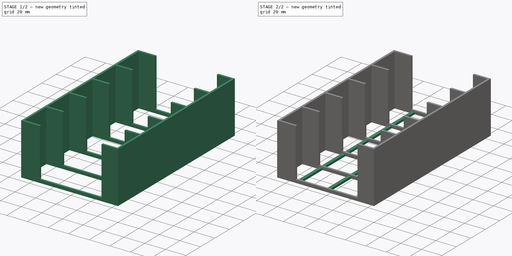
[diagram: build sequence overview — one tinted view per stage of 2, left to right]
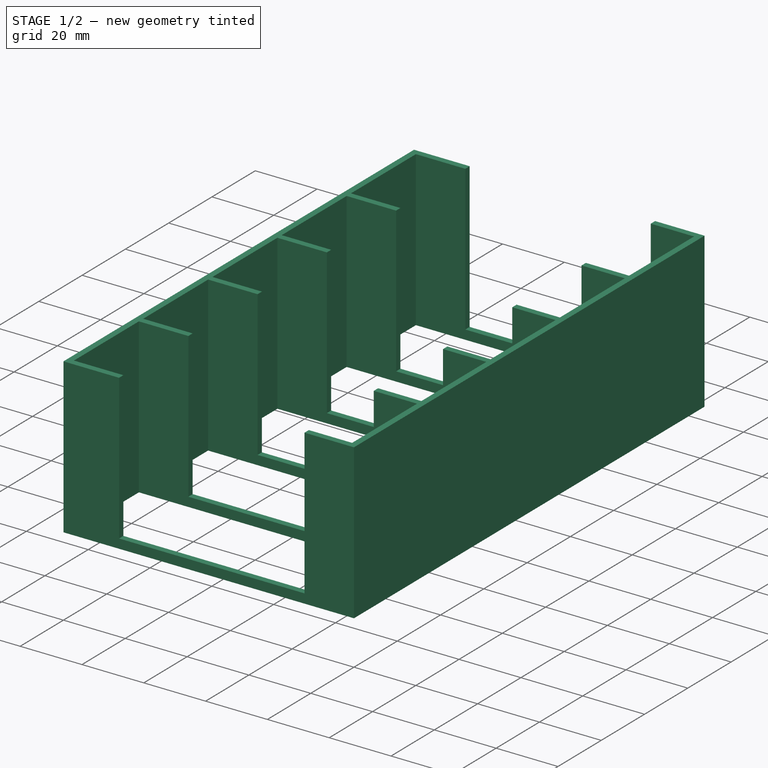
[diagram: stage 1 of 2 — iso view after this stage's code; geometry added in this stage tinted green]
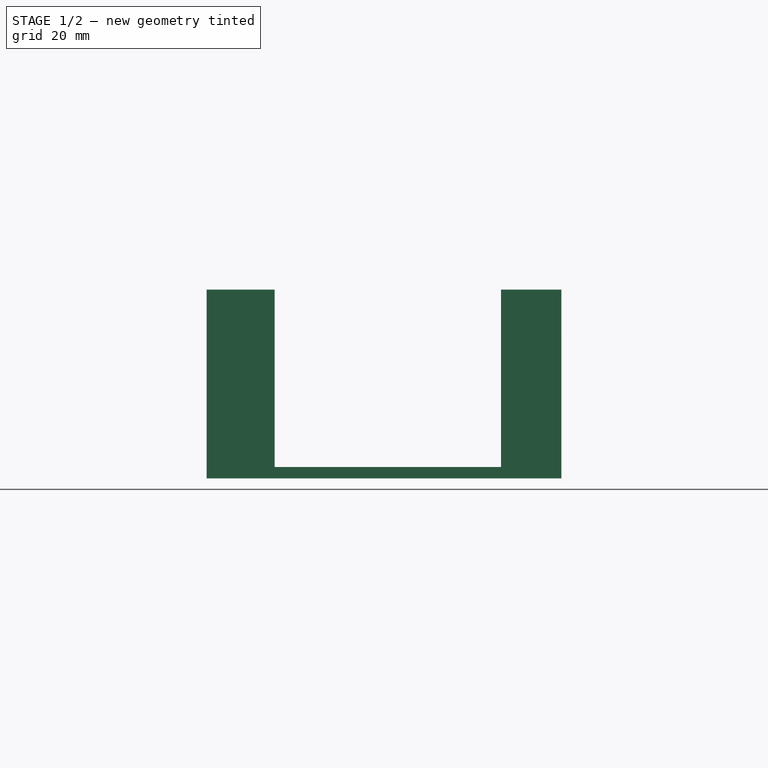
[diagram: stage 1 of 2 — front view after this stage's code; geometry added in this stage tinted green]
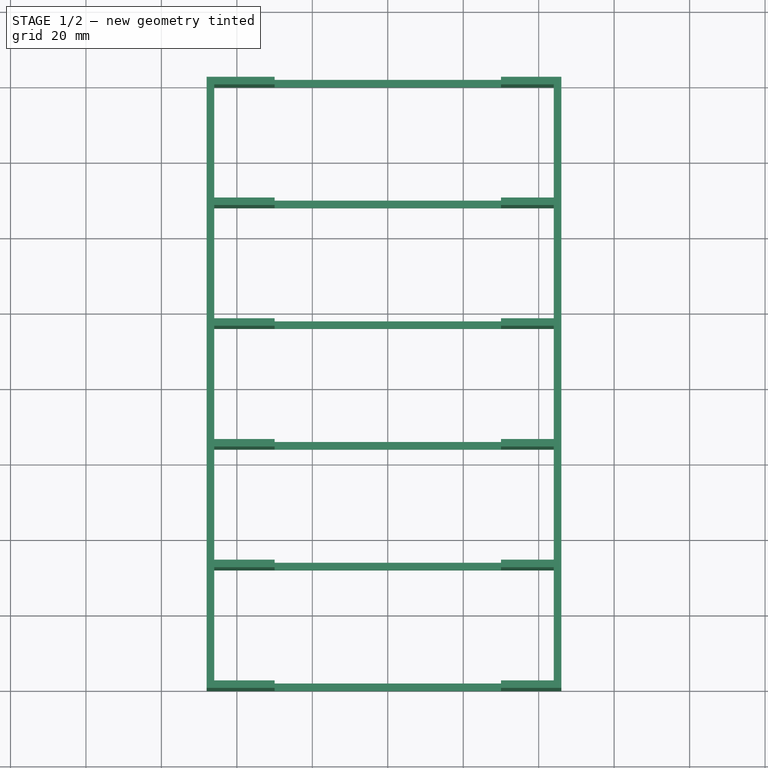
[diagram: stage 1 of 2 — top view after this stage's code; geometry added in this stage tinted green]
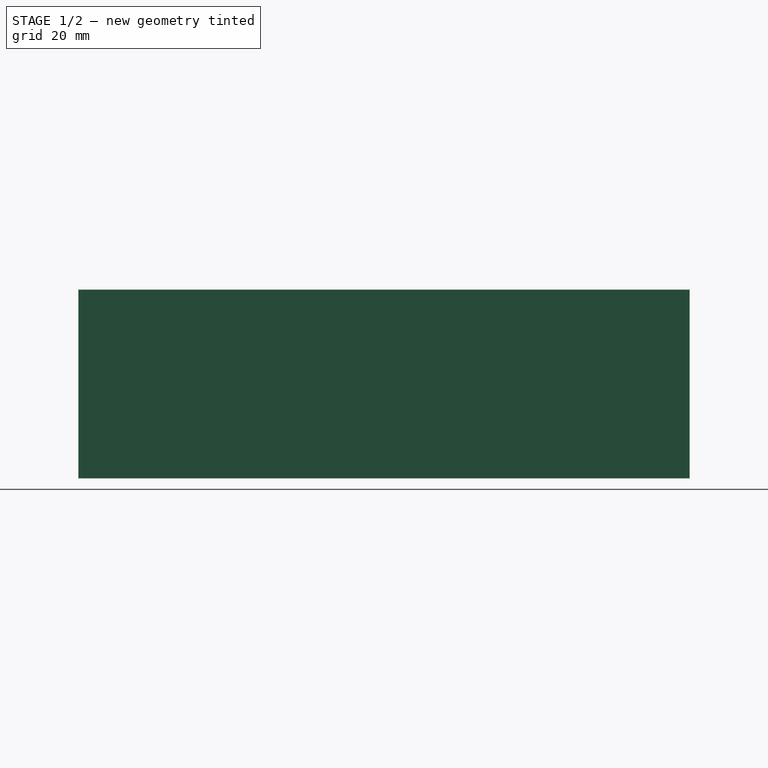
[diagram: stage 1 of 2 — right view after this stage's code; geometry added in this stage tinted green]
FCSTD DOCUMENT  (FreeCAD 0.21R33771 (Git))
Label: frame
License: All rights reserved
LicenseURL: http://en.wikipedia.org/wiki/All_rights_reserved
objects: Sketcher::SketchObject×3, PartDesign::Pad×2, PartDesign::Pocket×1, PartDesign::Body×1
note: 10 computed .brp shape members not serialized (recipe doc carries the construction recipe); baked Part::Feature solids carry a one-line shape summary decoded from their .brp

FEATURE [Sketcher::SketchObject] Sketch
  FullyConstrained = true
  MapMode = 5
  Support = -> [XY_Plane]
  sketch-geometry (24):
    g0: LineSegment StartX=-48 StartY=162 StartZ=0 EndX=46 EndY=162 EndZ=0
    g1: LineSegment StartX=46 StartY=162 StartZ=0 EndX=46 EndY=0 EndZ=0
    g2: LineSegment StartX=-48 StartY=162 StartZ=0 EndX=-48 EndY=0 EndZ=0
    g3: LineSegment StartX=-46 StartY=160 StartZ=0 EndX=44 EndY=160 EndZ=0
    g4: LineSegment StartX=44 StartY=160 StartZ=0 EndX=44 EndY=130 EndZ=0
    g5: LineSegment StartX=44 StartY=130 StartZ=0 EndX=-46 EndY=130 EndZ=0
    g6: LineSegment StartX=-46 StartY=130 StartZ=0 EndX=-46 EndY=160 EndZ=0
    g7: LineSegment StartX=-46 StartY=128 StartZ=0 EndX=44 EndY=128 EndZ=0
    g8: LineSegment StartX=44 StartY=128 StartZ=0 EndX=44 EndY=98 EndZ=0
    g9: LineSegment StartX=44 StartY=98 StartZ=0 EndX=-46 EndY=98 EndZ=0
    g10: LineSegment StartX=-46 StartY=98 StartZ=0 EndX=-46 EndY=128 EndZ=0
    g11: LineSegment StartX=-46 StartY=96 StartZ=0 EndX=44 EndY=96 EndZ=0
    g12: LineSegment StartX=44 StartY=96 StartZ=0 EndX=44 EndY=66 EndZ=0
    g13: LineSegment StartX=44 StartY=66 StartZ=0 EndX=-46 EndY=66 EndZ=0
    g14: LineSegment StartX=-46 StartY=66 StartZ=0 EndX=-46 EndY=96 EndZ=0
    g15: LineSegment StartX=-46 StartY=64 StartZ=0 EndX=44 EndY=64 EndZ=0
    g16: LineSegment StartX=44 StartY=64 StartZ=0 EndX=44 EndY=34 EndZ=0
    g17: LineSegment StartX=44 StartY=34 StartZ=0 EndX=-46 EndY=34 EndZ=0
    g18: LineSegment StartX=-46 StartY=34 StartZ=0 EndX=-46 EndY=64 EndZ=0
    g19: LineSegment StartX=-46 StartY=32 StartZ=0 EndX=44 EndY=32 EndZ=0
    g20: LineSegment StartX=44 StartY=32 StartZ=0 EndX=44 EndY=2 EndZ=0
    g21: LineSegment StartX=44 StartY=2 StartZ=0 EndX=-46 EndY=2 EndZ=0
    g22: LineSegment StartX=-46 StartY=2 StartZ=0 EndX=-46 EndY=32 EndZ=0
    g23: LineSegment StartX=-48 StartY=0 StartZ=0 EndX=46 EndY=0 EndZ=0
  constraints (72):
    c: Horizontal(g0)
    c: Vertical(g1)
    c: DistanceX(g23,g-1) = 48
    c: Vertical(g2)
    c: Coincident(g0,g1)
    c: Coincident(g3,g4)
    c: Coincident(g4,g5)
    c: Coincident(g5,g6)
    c: Coincident(g6,g3)
    c: Horizontal(g3)
    c: Horizontal(g5)
    c: Vertical(g4)
    c: Vertical(g6)
    c: Coincident(g7,g8)
    c: Coincident(g8,g9)
    c: Coincident(g9,g10)
    c: Coincident(g10,g7)
    c: Horizontal(g7)
    c: Horizontal(g9)
    c: Vertical(g8)
    c: Vertical(g10)
    c: Coincident(g11,g12)
    c: Coincident(g12,g13)
    c: Coincident(g13,g14)
    c: Coincident(g14,g11)
    c: Horizontal(g13)
    c: Vertical(g12)
    c: Vertical(g14)
    c: Coincident(g15,g16)
    c: Coincident(g16,g17)
    c: Coincident(g17,g18)
    c: Coincident(g18,g15)
    c: Horizontal(g15)
    c: Horizontal(g17)
    c: Vertical(g16)
    c: Vertical(g18)
    c: DistanceY(g15,g12) = 2
    c: Coincident(g19,g20)
    c: Coincident(g20,g21)
    c: Coincident(g21,g22)
    c: Coincident(g22,g19)
    c: Horizontal(g19)
    c: Horizontal(g21)
    c: Vertical(g20)
    c: Vertical(g22)
    c: DistanceY(g20,g20) = 30
    c: Horizontal(g23)
    c: Coincident(g2,g23)
    c: Coincident(g2,g0)
    c: Coincident(g1,g23)
    c: DistanceX(g23,g23) = 94
    c: DistanceX(g2,g21) = 2
    c: Vertical(g17,g19)
    c: Vertical(g13,g15)
    c: Vertical(g9,g11)
    c: Vertical(g5,g7)
    c: DistanceY(g2,g21) = 2
    c: DistanceY(g19,g17) = 2
    c: DistanceX(g21,g21) = 90
    c: Equal(g21,g17)
    c: Equal(g17,g13)
    c: Equal(g13,g9)
    c: Equal(g9,g5)
    c: Equal(g20,g16)
    c: Equal(g16,g12)
    c: Equal(g12,g8)
    c: Equal(g8,g4)
    c: Horizontal(g11)
    c: DistanceY(g11,g9) = 2
    c: DistanceY(g7,g5) = 2
    c: DistanceY(g3,g0) = 2
    c: PointOnObject(g2,g-1)
FEATURE [PartDesign::Pad] Pad
  Direction = (0,0,1)
  Length = 50
  Length2 = 10
  Profile = -> Sketch
  ReferenceAxis = -> Sketch [N_Axis]
  Type = 0
FEATURE [Sketcher::SketchObject] Sketch001
  FullyConstrained = false
  MapMode = 5
  Placement = pos=(0,0,0) rot=(1,0,0;1.5708rad)
  Support = -> [XZ_Plane]
  sketch-geometry (4):
    g0: LineSegment StartX=-30 StartY=57.9592 StartZ=0 EndX=30 EndY=57.9592 EndZ=0
    g1: LineSegment StartX=30 StartY=57.9592 StartZ=0 EndX=30 EndY=3 EndZ=0
    g2: LineSegment StartX=30 StartY=3 StartZ=0 EndX=-30 EndY=3 EndZ=0
    g3: LineSegment StartX=-30 StartY=3 StartZ=0 EndX=-30 EndY=57.9592 EndZ=0
  constraints (11):
    c: Coincident(g0,g1)
    c: Coincident(g1,g2)
    c: Coincident(g2,g3)
    c: Coincident(g3,g0)
    c: Horizontal(g0)
    c: Horizontal(g2)
    c: Vertical(g1)
    c: Vertical(g3)
    c: DistanceX(g2,g2) = 60
    c: DistanceY(g-1,g2) = 3
    c: DistanceX(g2,g-1) = 30
FEATURE [PartDesign::Pocket] Pocket
  BaseFeature = -> Pad
  Direction = (0,1,2e-16)
  Length = 5
  Length2 = 5
  Midplane = true
  Profile = -> Sketch001
  ReferenceAxis = -> Sketch001 [N_Axis]
  Type = 1
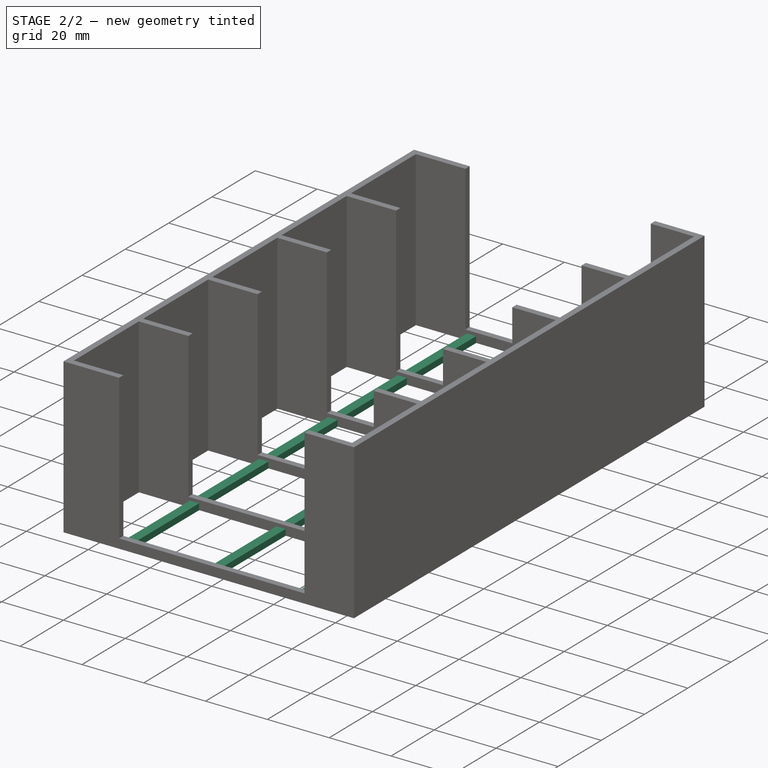
[diagram: stage 2 of 2 — iso view after this stage's code; geometry added in this stage tinted green]
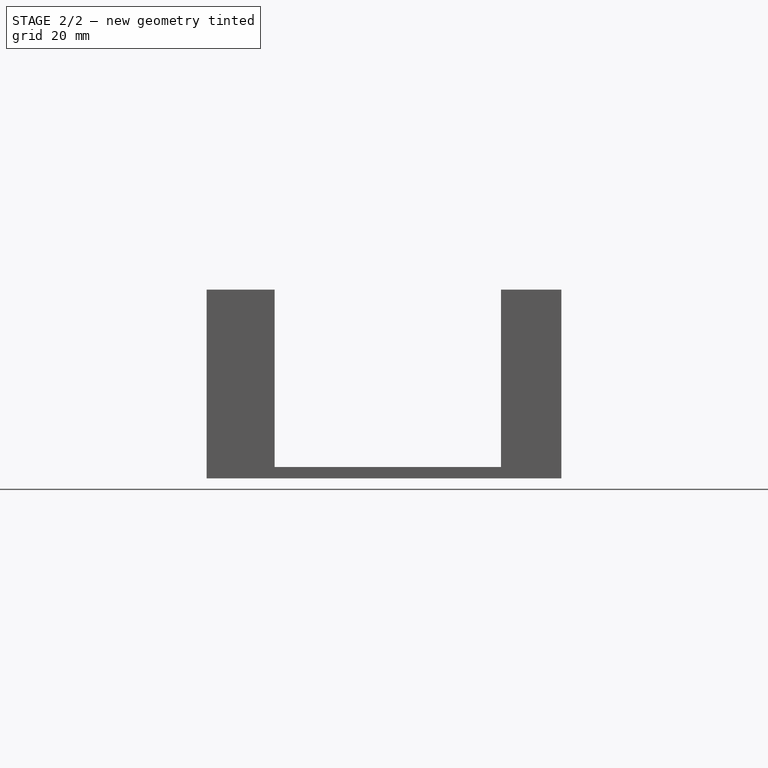
[diagram: stage 2 of 2 — front view after this stage's code; geometry added in this stage tinted green]
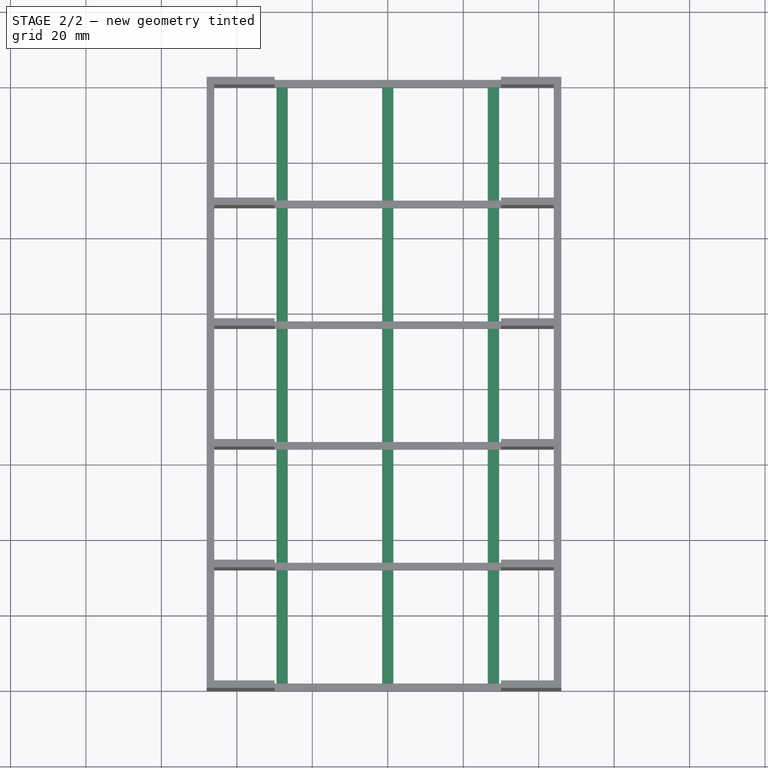
[diagram: stage 2 of 2 — top view after this stage's code; geometry added in this stage tinted green]
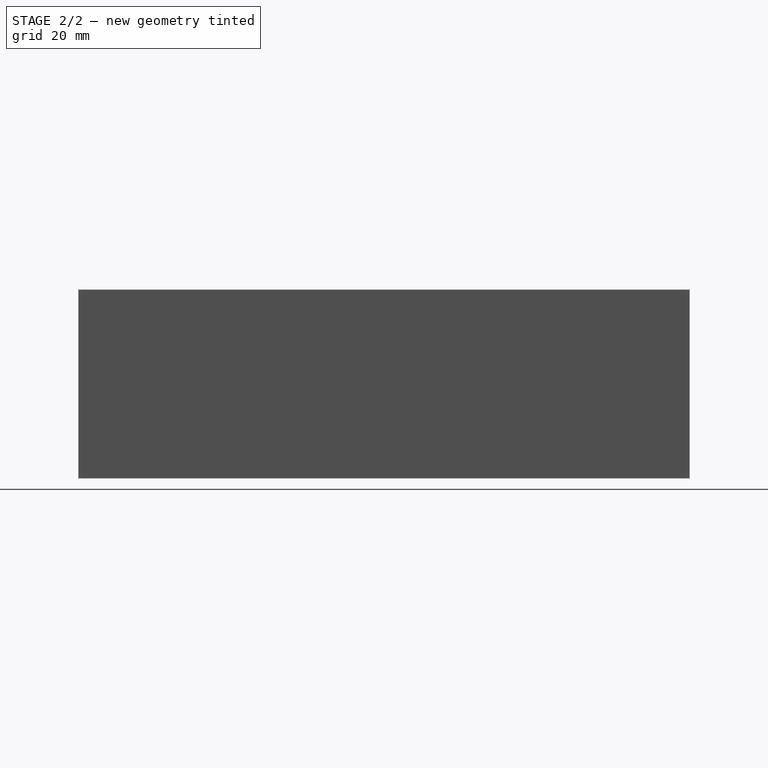
[diagram: stage 2 of 2 — right view after this stage's code; geometry added in this stage tinted green]
FEATURE [Sketcher::SketchObject] Sketch002
  FullyConstrained = true
  MapMode = 5
  Support = -> [XY_Plane]
  sketch-geometry (12):
    g0: LineSegment StartX=-29.5 StartY=0 StartZ=0 EndX=-26.5 EndY=0 EndZ=0
    g1: LineSegment StartX=-26.5 StartY=0 StartZ=0 EndX=-26.5 EndY=162 EndZ=0
    g2: LineSegment StartX=-26.5 StartY=162 StartZ=0 EndX=-29.5 EndY=162 EndZ=0
    g3: LineSegment StartX=-29.5 StartY=162 StartZ=0 EndX=-29.5 EndY=0 EndZ=0
    g4: LineSegment StartX=-1.5 StartY=0 StartZ=0 EndX=1.5 EndY=0 EndZ=0
    g5: LineSegment StartX=1.5 StartY=0 StartZ=0 EndX=1.5 EndY=162 EndZ=0
    g6: LineSegment StartX=1.5 StartY=162 StartZ=0 EndX=-1.5 EndY=162 EndZ=0
    g7: LineSegment StartX=-1.5 StartY=162 StartZ=0 EndX=-1.5 EndY=0 EndZ=0
    g8: LineSegment StartX=26.5 StartY=0 StartZ=0 EndX=29.5 EndY=0 EndZ=0
    g9: LineSegment StartX=29.5 StartY=0 StartZ=0 EndX=29.5 EndY=162 EndZ=0
    g10: LineSegment StartX=29.5 StartY=162 StartZ=0 EndX=26.5 EndY=162 EndZ=0
    g11: LineSegment StartX=26.5 StartY=162 StartZ=0 EndX=26.5 EndY=0 EndZ=0
  constraints (36):
    c: Coincident(g0,g1)
    c: Coincident(g1,g2)
    c: Coincident(g2,g3)
    c: Coincident(g3,g0)
    c: Horizontal(g0)
    c: Horizontal(g2)
    c: Vertical(g1)
    c: Vertical(g3)
    c: PointOnObject(g0,g-1)
    c: Coincident(g4,g5)
    c: Coincident(g5,g6)
    c: Coincident(g6,g7)
    c: Coincident(g7,g4)
    c: Horizontal(g4)
    c: Horizontal(g6)
    c: Vertical(g5)
    c: Vertical(g7)
    c: PointOnObject(g4,g-1)
    c: Coincident(g8,g9)
    c: Coincident(g9,g10)
    c: Coincident(g10,g11)
    c: Coincident(g11,g8)
    c: Horizontal(g8)
    c: Horizontal(g10)
    c: Vertical(g9)
    c: Vertical(g11)
    c: PointOnObject(g8,g-1)
    c: Equal(g0,g4)
    c: Equal(g4,g8)
    c: DistanceX(g0,g0) = 3
    c: Horizontal(g1,g6)
    c: Horizontal(g6,g10)
    c: DistanceX(g1,g6) = 25
    c: DistanceX(g5,g10) = 25
    c: DistanceX(g6,g-1) = 1.5
    c: DistanceY(g9,g9) = 162
FEATURE [PartDesign::Pad] Pad001
  BaseFeature = -> Pocket
  Direction = (0,0,1)
  Length = 2
  Length2 = 10
  Profile = -> Sketch002
  ReferenceAxis = -> Sketch002 [N_Axis]
  Type = 0
FEATURE [PartDesign::Body] Body
  Group = -> [Sketch,Pad,Sketch001,Pocket,Sketch002,Pad001]
  Origin = -> Origin
  Tip = -> Pad001
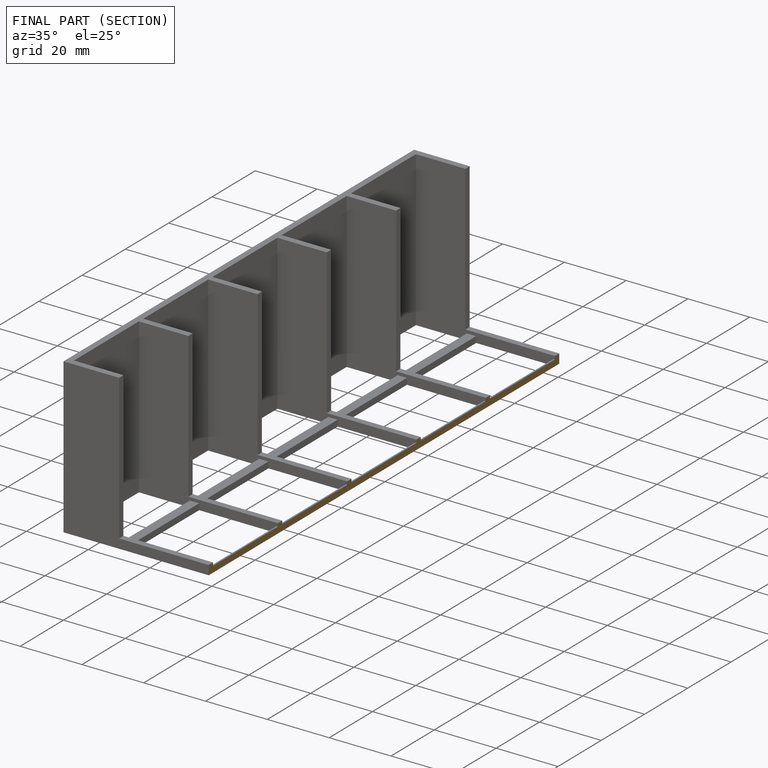
[diagram: finished part — half-section view (interior)]
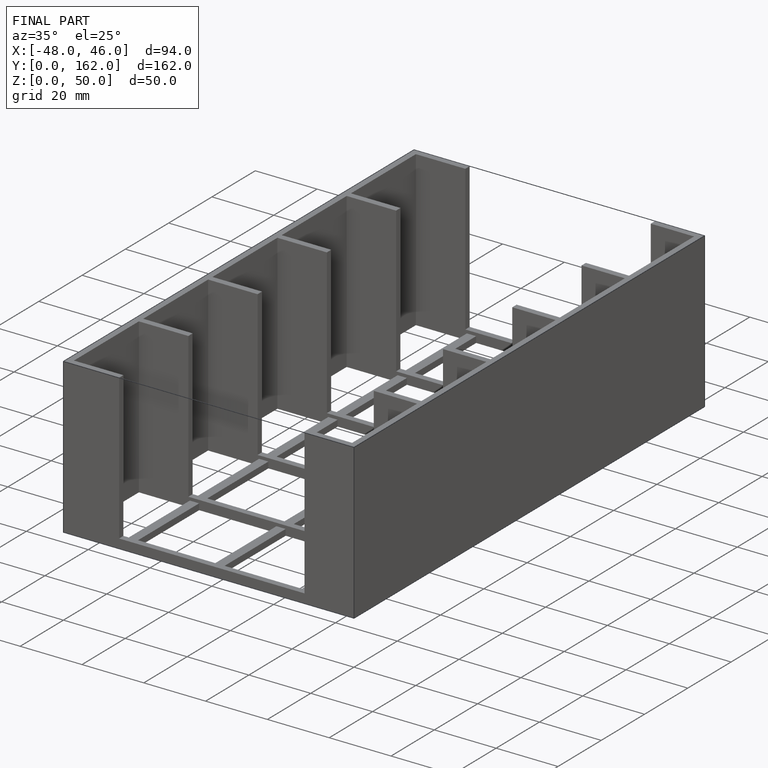
[diagram: finished part — iso view with bounding-box wireframe]
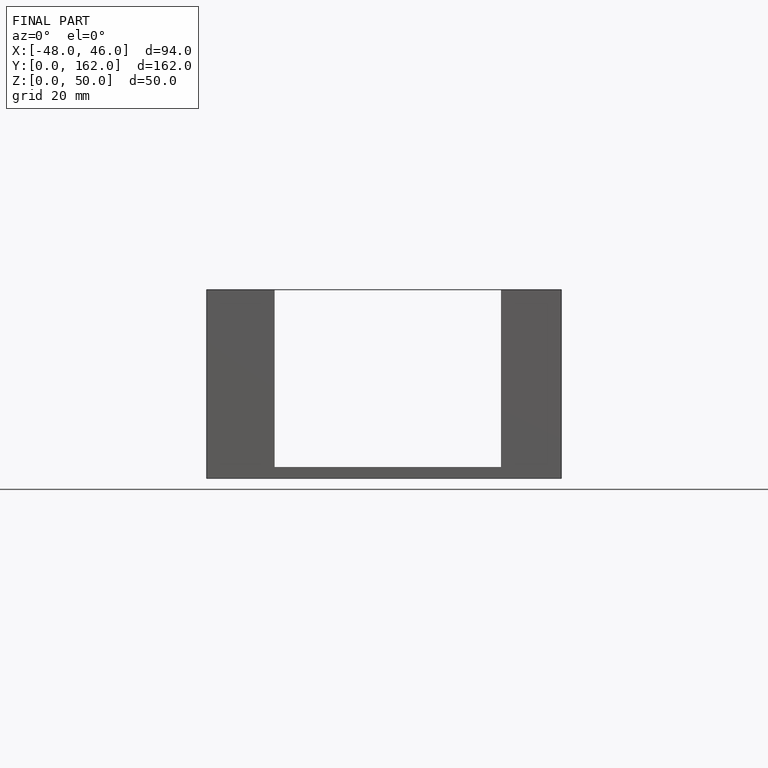
[diagram: finished part — front view with bounding-box wireframe]
